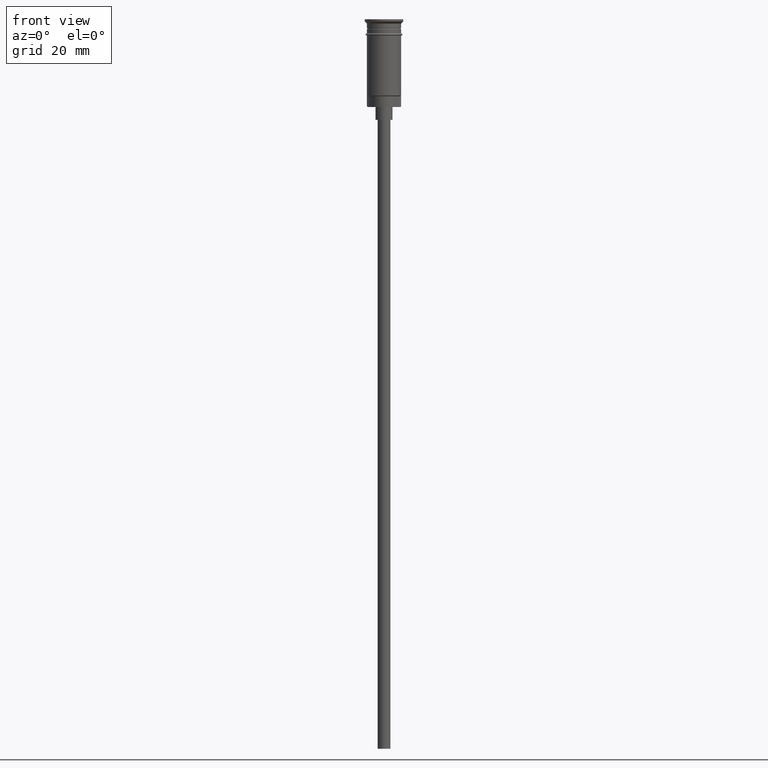
[diagram: clean part render]
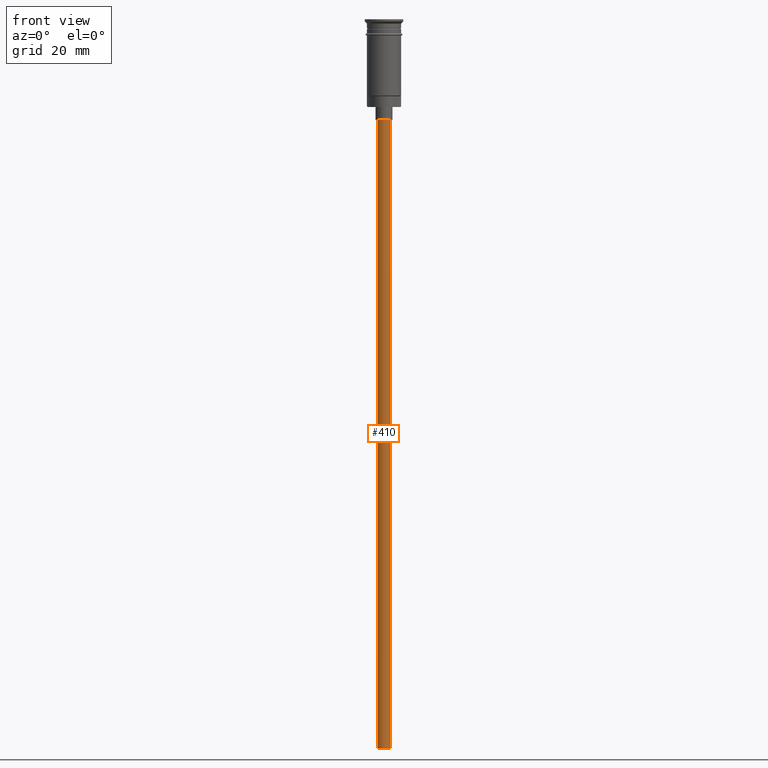
[diagram: same view with one face highlighted and labeled with its STEP entity id]
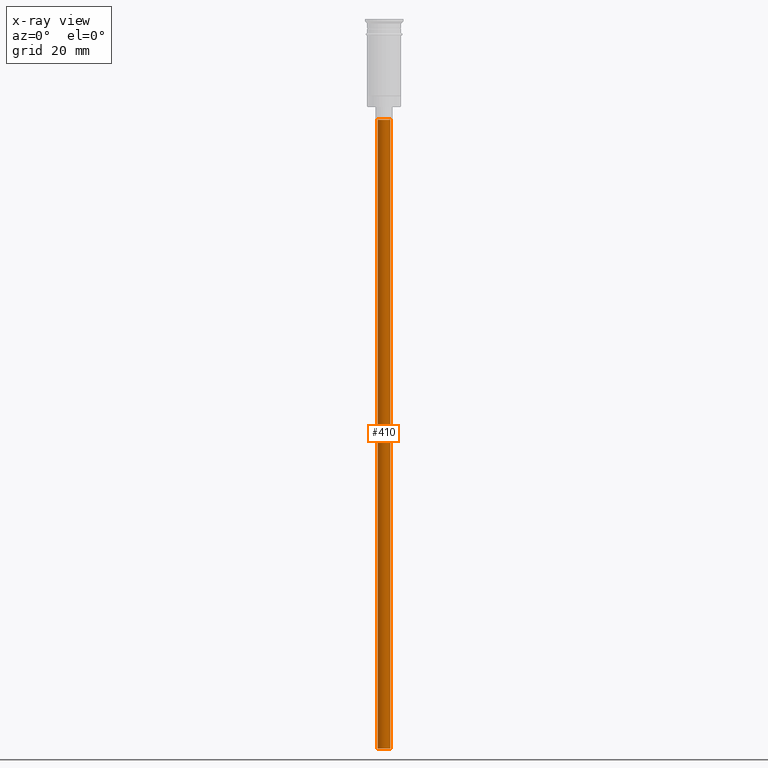
[diagram: x-ray of the same camera — body ghosted, the highlighted face saturated]
A machine part, front view. The second image highlights one B-rep face of the part: STEP entity #410.
The next image is the same camera in x-ray: the body ghosted, the highlighted face saturated — about 0% of this face is hidden behind the body in this view.
In plain terms, the highlighted cylindrical surface (edge-blend (fillet) strip) has radius 1.5 mm, axis along (-0, -0, 1).
Its self-contained STEP definition (entity closure, byte-faithful):
#26 = AXIS2_PLACEMENT_3D ( 'NONE', #809, #1189, #1401 ) ;
#39 = DIRECTION ( 'NONE',  ( -0.000000000000000000, -0.000000000000000000, 1.000000000000000000 ) ) ;
#130 = CARTESIAN_POINT ( 'NONE',  ( 1.500000000000000222, 0.000000000000000000, -170.4999999999999716 ) ) ;
#171 = DIRECTION ( 'NONE',  ( -1.000000000000000000, 0.000000000000000000, 0.000000000000000000 ) ) ;
#175 = FACE_OUTER_BOUND ( 'NONE', #728, .T. ) ;
#176 = LINE ( 'NONE', #1386, #653 ) ;
#184 = LINE ( 'NONE', #1027, #1302 ) ;
#279 = ORIENTED_EDGE ( 'NONE', *, *, #344, .T. ) ;
#329 = CARTESIAN_POINT ( 'NONE',  ( -1.500000000000000222, 1.836970198721030181E-16, -170.4999999999999716 ) ) ;
#344 = EDGE_CURVE ( 'NONE', #1248, #1549, #598, .T. ) ;
#410 = ADVANCED_FACE ( 'NONE', ( #175 ), #904, .T. ) ;
#517 = AXIS2_PLACEMENT_3D ( 'NONE', #669, #1536, #930 ) ;
#530 = CARTESIAN_POINT ( 'NONE',  ( 1.500000000000000222, 0.000000000000000000, -23.49999999999999645 ) ) ;
#598 = CIRCLE ( 'NONE', #26, 1.500000000000000222 ) ;
#637 = CARTESIAN_POINT ( 'NONE',  ( -1.500000000000000222, 1.836970198721030181E-16, -23.49999999999999645 ) ) ;
#653 = VECTOR ( 'NONE', #39, 1000.000000000000000 ) ;
#669 = CARTESIAN_POINT ( 'NONE',  ( 0.000000000000000000, 0.000000000000000000, -170.4999999999999716 ) ) ;
#671 = ORIENTED_EDGE ( 'NONE', *, *, #1233, .T. ) ;
#728 = EDGE_LOOP ( 'NONE', ( #1230, #1363, #671, #279 ) ) ;
#809 = CARTESIAN_POINT ( 'NONE',  ( 0.000000000000000000, 0.000000000000000000, -23.49999999999999645 ) ) ;
#814 = CARTESIAN_POINT ( 'NONE',  ( 0.000000000000000000, 0.000000000000000000, -170.4999999999999716 ) ) ;
#816 = EDGE_CURVE ( 'NONE', #1078, #946, #1529, .T. ) ;
#904 = CYLINDRICAL_SURFACE ( 'NONE', #517, 1.500000000000000222 ) ;
#930 = DIRECTION ( 'NONE',  ( 1.000000000000000000, 0.000000000000000000, 0.000000000000000000 ) ) ;
#946 = VERTEX_POINT ( 'NONE', #329 ) ;
#1027 = CARTESIAN_POINT ( 'NONE',  ( -1.500000000000000222, 1.836970198721030181E-16, -170.4999999999999716 ) ) ;
#1078 = VERTEX_POINT ( 'NONE', #130 ) ;
#1164 = DIRECTION ( 'NONE',  ( -0.000000000000000000, -0.000000000000000000, 1.000000000000000000 ) ) ;
#1179 = AXIS2_PLACEMENT_3D ( 'NONE', #814, #1278, #171 ) ;
#1189 = DIRECTION ( 'NONE',  ( 0.000000000000000000, 0.000000000000000000, -1.000000000000000000 ) ) ;
#1230 = ORIENTED_EDGE ( 'NONE', *, *, #1263, .F. ) ;
#1233 = EDGE_CURVE ( 'NONE', #1078, #1248, #176, .T. ) ;
#1248 = VERTEX_POINT ( 'NONE', #530 ) ;
#1263 = EDGE_CURVE ( 'NONE', #946, #1549, #184, .T. ) ;
#1278 = DIRECTION ( 'NONE',  ( 0.000000000000000000, 0.000000000000000000, -1.000000000000000000 ) ) ;
#1302 = VECTOR ( 'NONE', #1164, 1000.000000000000000 ) ;
#1363 = ORIENTED_EDGE ( 'NONE', *, *, #816, .F. ) ;
#1386 = CARTESIAN_POINT ( 'NONE',  ( 1.500000000000000222, 0.000000000000000000, -170.4999999999999716 ) ) ;
#1401 = DIRECTION ( 'NONE',  ( -1.000000000000000000, 0.000000000000000000, 0.000000000000000000 ) ) ;
#1529 = CIRCLE ( 'NONE', #1179, 1.500000000000000222 ) ;
#1536 = DIRECTION ( 'NONE',  ( -0.000000000000000000, -0.000000000000000000, 1.000000000000000000 ) ) ;
#1549 = VERTEX_POINT ( 'NONE', #637 ) ;